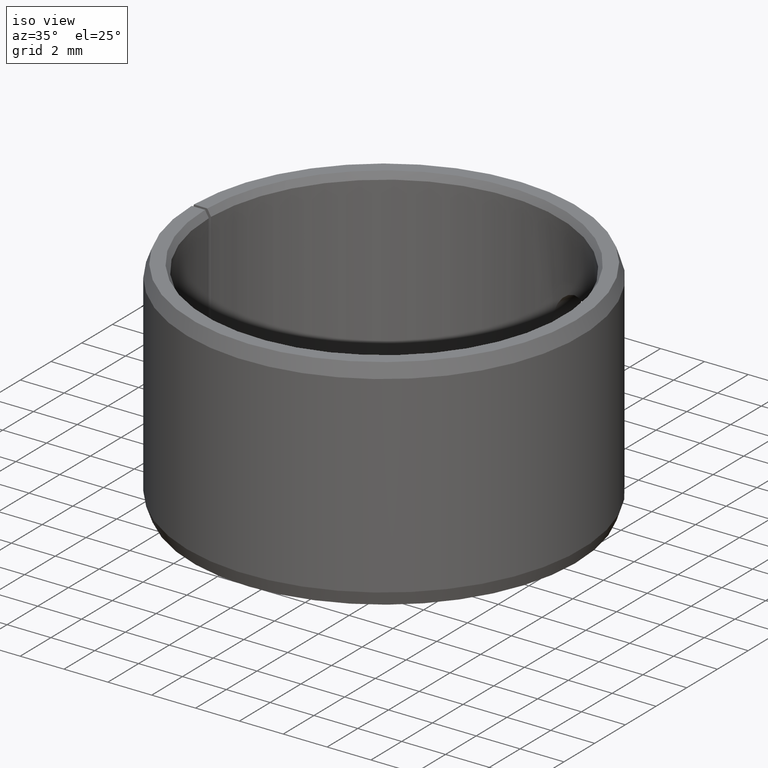
[diagram: clean part render]
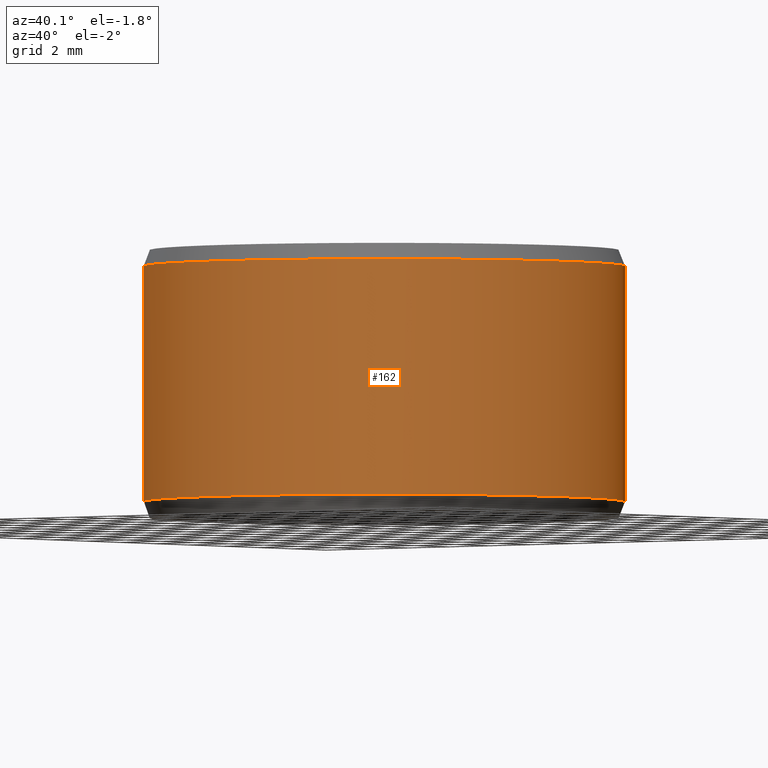
[diagram: tour spotlight — one face highlighted and labeled with its STEP entity id]
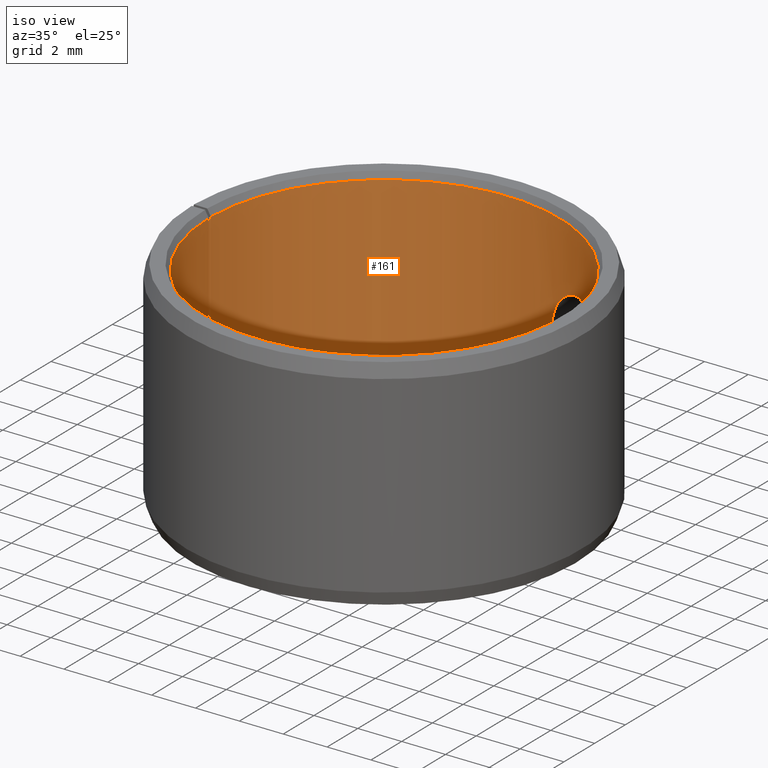
[diagram: tour spotlight — one face highlighted and labeled with its STEP entity id]
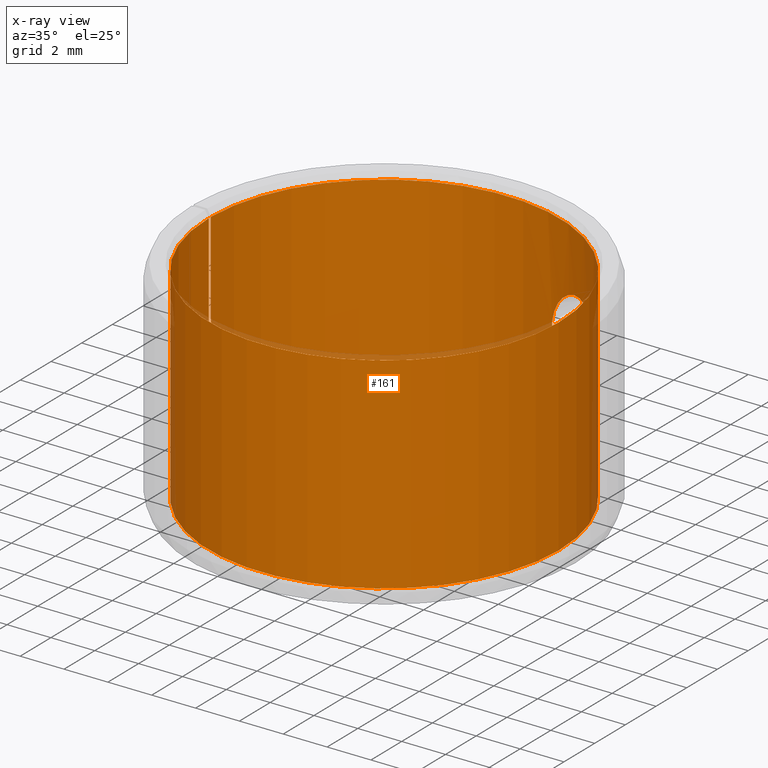
[diagram: x-ray of the same camera — body ghosted, this tour face saturated]
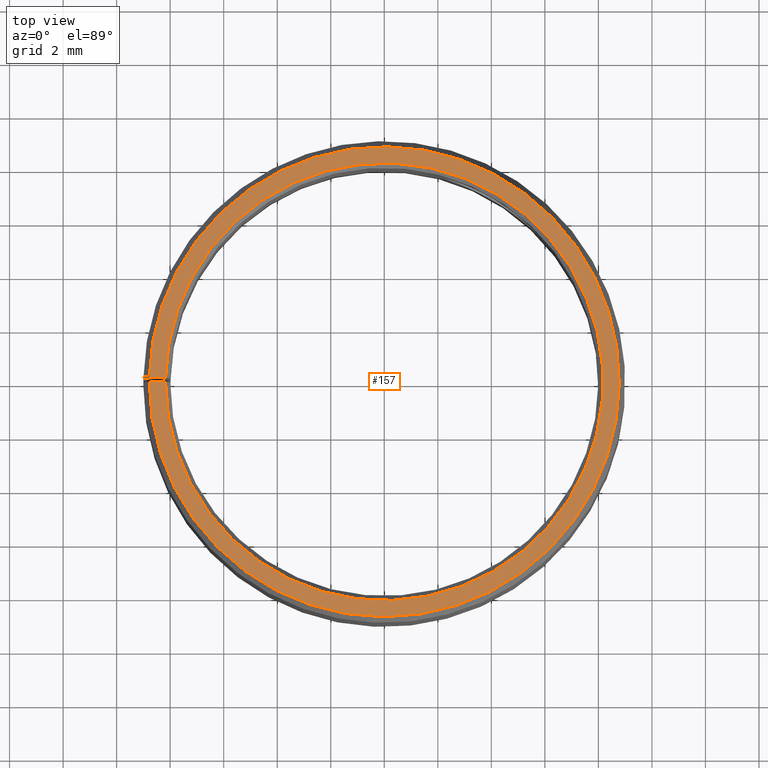
[diagram: tour spotlight — one face highlighted and labeled with its STEP entity id]
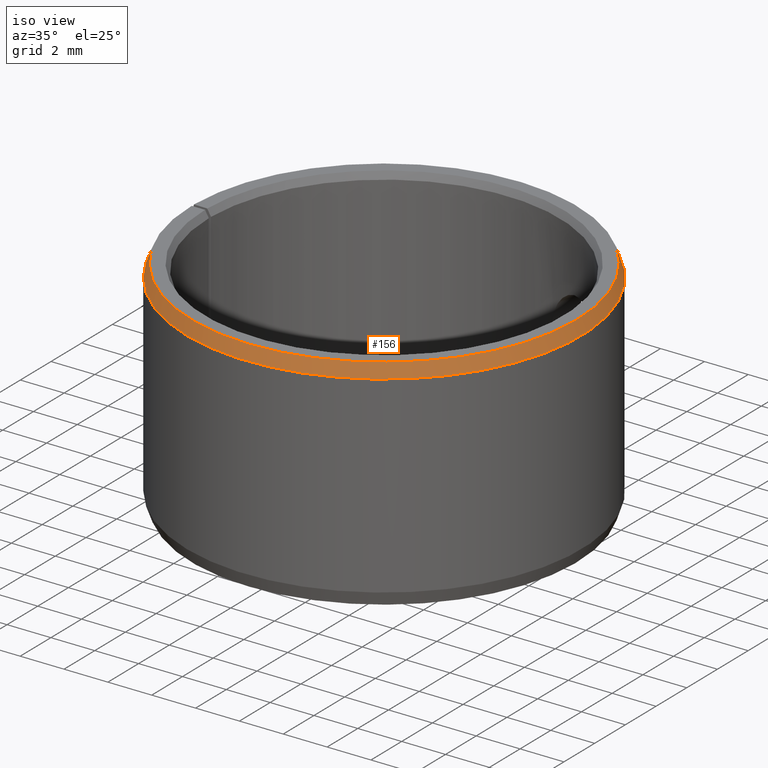
[diagram: tour spotlight — one face highlighted and labeled with its STEP entity id]
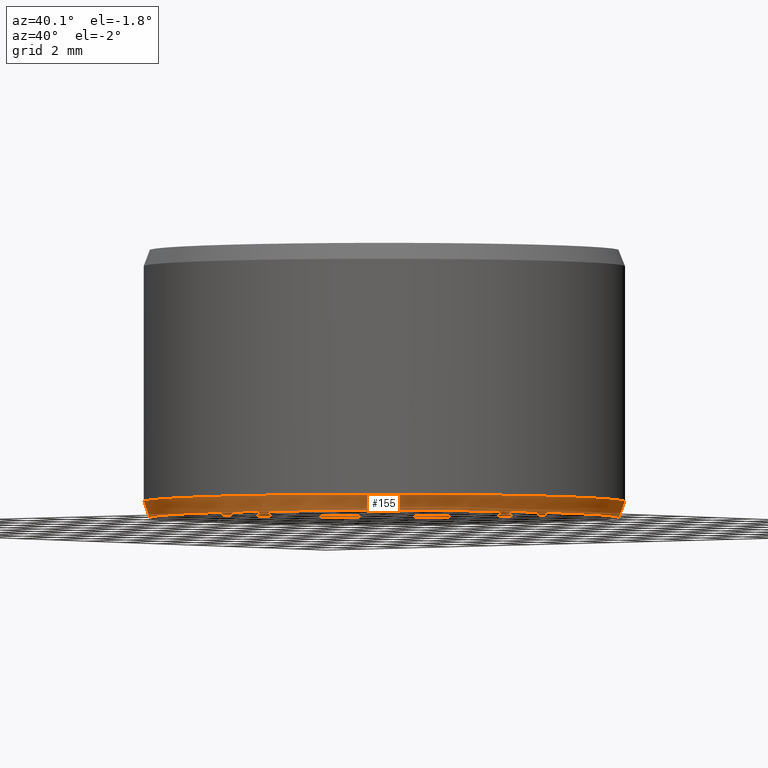
[diagram: tour spotlight — one face highlighted and labeled with its STEP entity id]
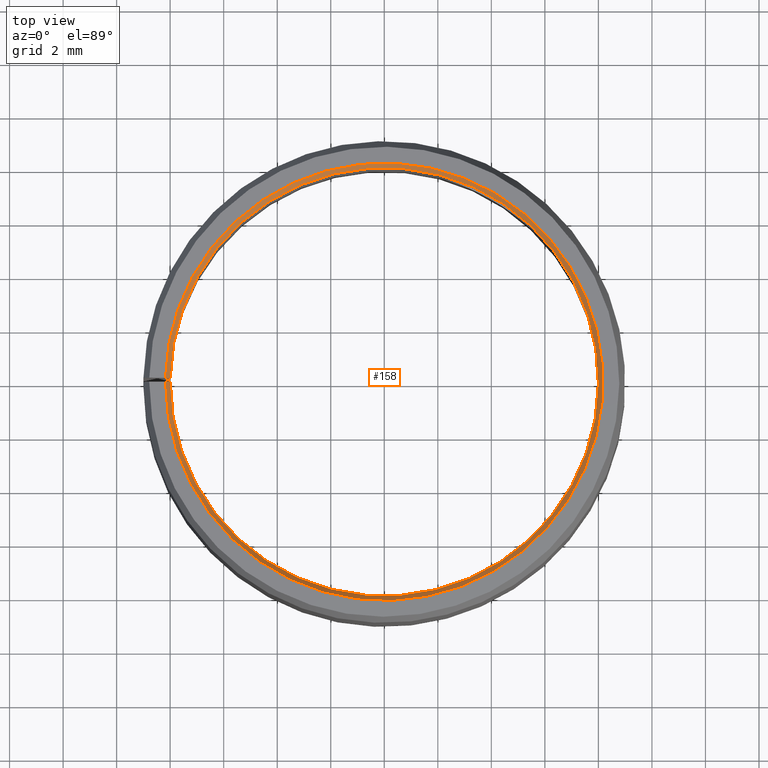
[diagram: tour spotlight — one face highlighted and labeled with its STEP entity id]
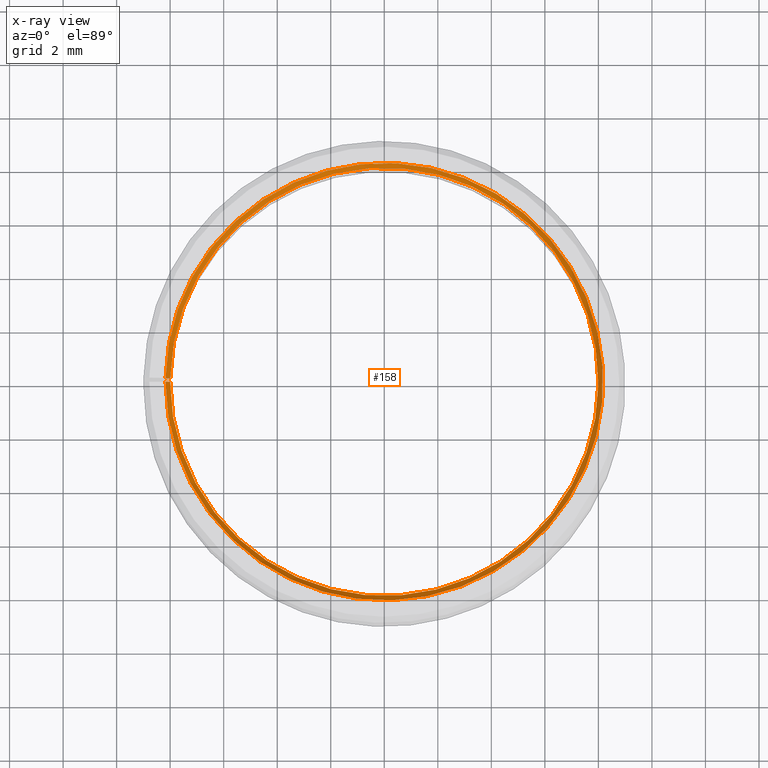
[diagram: x-ray of the same camera — body ghosted, this tour face saturated]
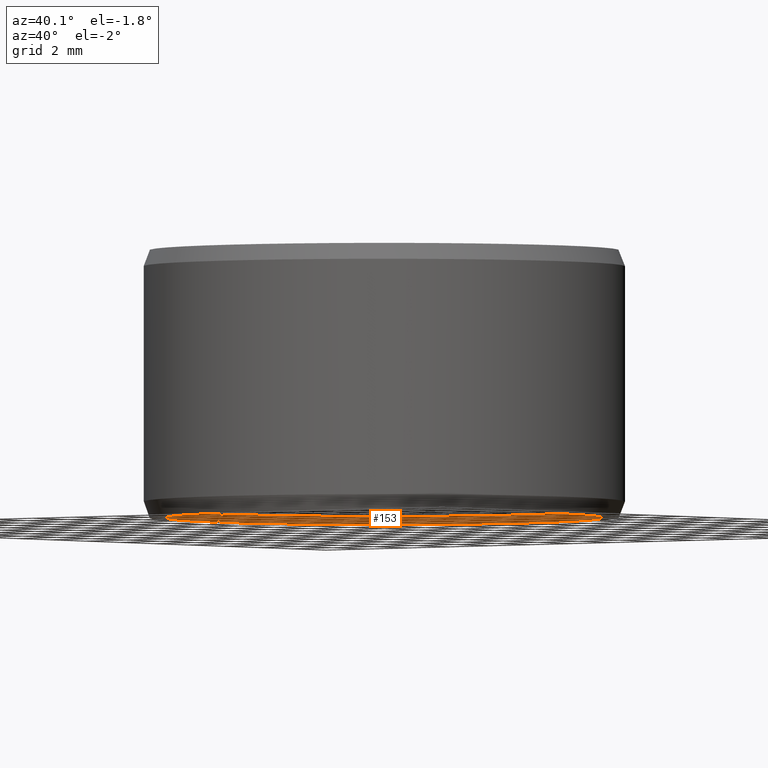
[diagram: tour spotlight — one face highlighted and labeled with its STEP entity id]
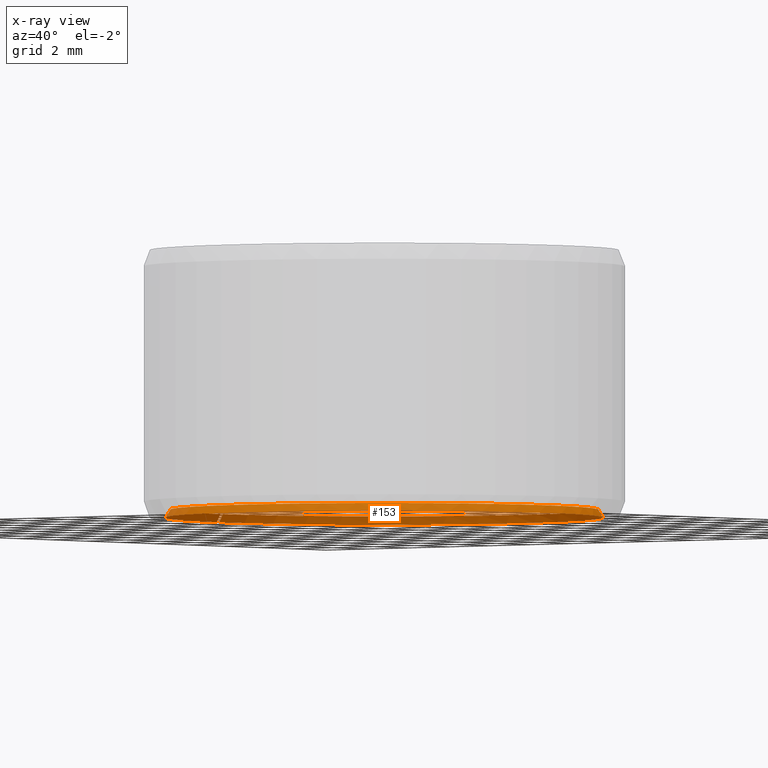
[diagram: x-ray of the same camera — body ghosted, this tour face saturated]
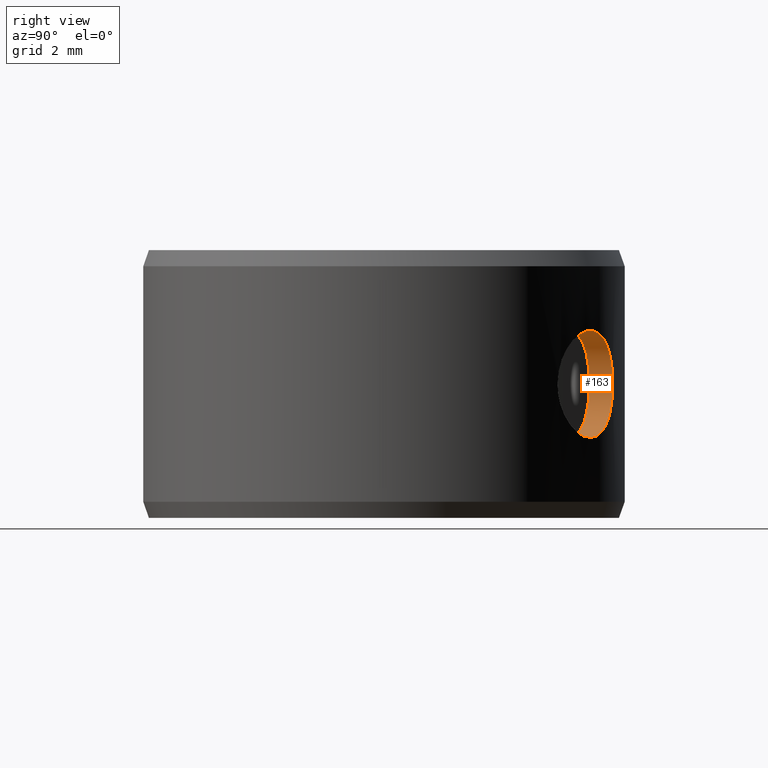
[diagram: tour spotlight — one face highlighted and labeled with its STEP entity id]
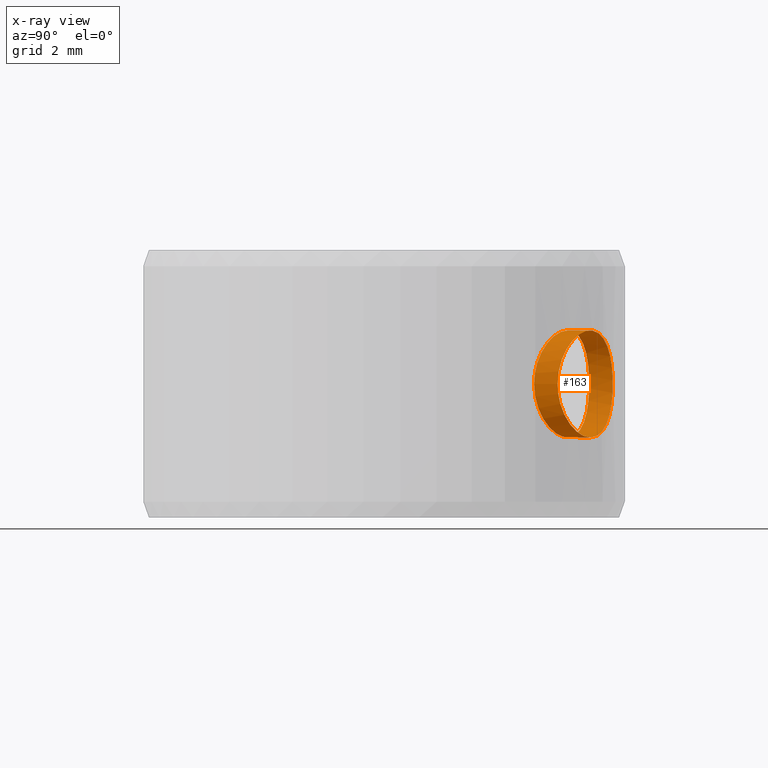
[diagram: x-ray of the same camera — body ghosted, this tour face saturated]
A machine part: a face-by-face anatomy tour. The part has 11 B-rep faces; the first image is the clean iso view, then the 8 largest visible faces are spotlighted one at a time (largest first), each with its STEP entity span.

Face 1 — auxiliary view, entity #162. In plain terms, the highlighted cylindrical surface (partial cylindrical patch) has radius 9 mm, axis along (-0, 0, -1).
Definition (entity closure, byte-faithful):
#162=ADVANCED_FACE('',(#185,#186),#187,.T.);
#185=FACE_OUTER_BOUND('',#211,.T.);
#186=FACE_BOUND('',#212,.T.);
#187=CYLINDRICAL_SURFACE('',#213,0.009);
#211=EDGE_LOOP('',(#289,#290,#291,#292));
#212=EDGE_LOOP('',(#293));
#213=AXIS2_PLACEMENT_3D('',#294,#295,#296);
#289=ORIENTED_EDGE('',*,*,#314,.T.);
#290=ORIENTED_EDGE('',*,*,#323,.F.);
#291=ORIENTED_EDGE('',*,*,#309,.F.);
#292=ORIENTED_EDGE('',*,*,#324,.T.);
#293=ORIENTED_EDGE('',*,*,#327,.T.);
#294=CARTESIAN_POINT('',(-6.93889390390723E-018,-6.93889390390723E-018,0.0));
#295=DIRECTION('',(6.12323399573677E-017,0.0,-1.0));
#296=DIRECTION('',(-1.0,0.0,-6.12323399573677E-017));
#309=EDGE_CURVE('',#341,#342,#343,.T.);
#314=EDGE_CURVE('',#351,#349,#352,.T.);
#323=EDGE_CURVE('',#342,#349,#365,.T.);
#324=EDGE_CURVE('',#341,#351,#366,.T.);
#327=EDGE_CURVE('',#370,#370,#371,.T.);
#341=VERTEX_POINT('',#389);
#342=VERTEX_POINT('',#390);
#343=CIRCLE('',#391,0.009);
#349=VERTEX_POINT('',#399);
#351=VERTEX_POINT('',#402);
#352=CIRCLE('',#403,0.009);
#365=LINE('',#422,#423);
#366=LINE('',#424,#425);
#370=VERTEX_POINT('',#483);
#371=B_SPLINE_CURVE_WITH_KNOTS('',3,(#484,#485,#486,#487,#488,#489,#490,#491,#492,#493,#494,#495,#496,#497,#498,#499,#500,#501,#502,#503,#504,#505,#506,#507,#508,#509,#510,#511,#512,#513,#514,#515,#516,#517,#518,#519,#520,#521,#522,#523,#524,#525,#526,#527,#528,#529,#530,#531,#532,#533,#534,#535,#536,#537,#538,#539),.UNSPECIFIED.,.T.,.F.,(2,2,2,2,2,2,2,2,2,2,2,2,2,2,2,2,2,2,2,2,2,2,2,2,2,2,2,2,2,2),(-0.000391979612327261,0.0,0.000391979612327263,0.000783959224654527,0.00117593883698179,0.00156791844930905,0.00235187767396358,0.00274385728629084,0.0031358368986181,0.00352781651094537,0.00391979612327263,0.00470375534792716,0.00509573496025442,0.00548771457258169,0.00587969418490895,0.00627167379723621,0.00705563302189074,0.007447612634218,0.00783959224654526,0.00823157185887253,0.00862355147119979,0.00940751069585431,0.00979949030818158,0.0101914699205088,0.0105834495328361,0.0109754291451634,0.0117593883698179,0.0121513679821452,0.0125433475944724,0.0129353272067997),.UNSPECIFIED.);
#389=CARTESIAN_POINT('',(0.000157071657935546,0.00899862925640751,0.0006));
#390=CARTESIAN_POINT('',(-6.93889390390723E-018,0.009,0.0006));
#391=AXIS2_PLACEMENT_3D('',#553,#554,#555);
#399=CARTESIAN_POINT('',(-6.93889390390723E-018,0.009,0.0094));
#402=CARTESIAN_POINT('',(0.000157071657935546,0.00899862925640751,0.0094));
#403=AXIS2_PLACEMENT_3D('',#562,#563,#564);
#422=CARTESIAN_POINT('',(-6.93889390390723E-018,0.009,0.0006));
#423=VECTOR('',#577,1.0);
#424=CARTESIAN_POINT('',(0.000157071657935546,0.00899862925640751,0.0006));
#425=VECTOR('',#578,1.0);
#483=CARTESIAN_POINT('',(0.00649153638789973,-0.00623377536686827,0.005));
#484=CARTESIAN_POINT('',(0.00649153638789973,-0.00623377536686827,0.00486742535613586));
#485=CARTESIAN_POINT('',(0.00649153638789973,-0.00623377536686827,0.00513257464386414));
#486=CARTESIAN_POINT('',(0.00650083241338172,-0.00622413544862422,0.00526284828907646));
#487=CARTESIAN_POINT('',(0.00653690008760389,-0.00618624453076171,0.00551900896382328));
#488=CARTESIAN_POINT('',(0.00656412375100507,-0.00615750895635173,0.00564625005786351));
#489=CARTESIAN_POINT('',(0.00663396264910226,-0.00608220163562314,0.00588823348289349));
#490=CARTESIAN_POINT('',(0.00667628926279565,-0.00603594335006861,0.0060029372563178));
#491=CARTESIAN_POINT('',(0.00677441003931837,-0.00592560706298861,0.00622001826356457));
#492=CARTESIAN_POINT('',(0.00683051653391996,-0.00586111851488462,0.00632246584466523));
#493=CARTESIAN_POINT('',(0.00701018186383621,-0.00564730162986275,0.00659821180236417));
#494=CARTESIAN_POINT('',(0.00714977991452247,-0.00547164517655704,0.00674709384398657));
#495=CARTESIAN_POINT('',(0.00736201865775566,-0.00517834382055882,0.00689693437285629));
#496=CARTESIAN_POINT('',(0.00743431346811199,-0.00507421932100882,0.00693556980366085));
#497=CARTESIAN_POINT('',(0.00757701422267754,-0.00485855677430992,0.00698711625691383));
#498=CARTESIAN_POINT('',(0.00764645237450646,-0.00474856808685544,0.00699992038524747));
#499=CARTESIAN_POINT('',(0.00778131158814689,-0.0045241930506189,0.00700007888162346));
#500=CARTESIAN_POINT('',(0.0078472956860369,-0.0044086814289909,0.00698699420428227));
#501=CARTESIAN_POINT('',(0.00796999714638662,-0.00418278220960781,0.00693578344770082));
#502=CARTESIAN_POINT('',(0.00802729836757029,-0.00407152433442573,0.00689789791403947));
#503=CARTESIAN_POINT('',(0.00818813184407548,-0.00374350301927322,0.00674704042524777));
#504=CARTESIAN_POINT('',(0.0082766783877908,-0.0035400471400707,0.00659999060963653));
#505=CARTESIAN_POINT('',(0.00838212938197548,-0.00327852737460508,0.00632158010506107));
#506=CARTESIAN_POINT('',(0.00841208911624106,-0.0032003411363729,0.00622106244951509));
#507=CARTESIAN_POINT('',(0.0084633488666744,-0.00306221368452679,0.00600486970299636));
#508=CARTESIAN_POINT('',(0.00848479381479918,-0.00300181606838985,0.00588776844088788));
#509=CARTESIAN_POINT('',(0.00851842492861313,-0.00290500645845757,0.00564621609125844));
#510=CARTESIAN_POINT('',(0.00853080799868714,-0.00286810252562134,0.00552155714320594));
#511=CARTESIAN_POINT('',(0.0085474901912799,-0.00281799727429142,0.0052643445149041));
#512=CARTESIAN_POINT('',(0.00855167121990006,-0.00280515941612128,0.00513157897297379));
#513=CARTESIAN_POINT('',(0.00855172345634039,-0.00280500016733714,0.00473934166213281));
#514=CARTESIAN_POINT('',(0.00853526937167027,-0.00285649654147554,0.00447536526852926));
#515=CARTESIAN_POINT('',(0.00848509149851213,-0.00300097004258383,0.00411407356537912));
#516=CARTESIAN_POINT('',(0.00846377977503213,-0.00306102971559201,0.00399717751562874));
#517=CARTESIAN_POINT('',(0.00841232596162622,-0.00319972544374196,0.00377970960645853));
#518=CARTESIAN_POINT('',(0.00838237346377926,-0.00327788269356002,0.00367928093876096));
#519=CARTESIAN_POINT('',(0.00831263861456454,-0.00345090409931389,0.00349473779407445));
#520=CARTESIAN_POINT('',(0.00827254210173716,-0.00354639556713496,0.00341049277168108));
#521=CARTESIAN_POINT('',(0.00818425207306022,-0.00374564978985196,0.00326569674961832));
#522=CARTESIAN_POINT('',(0.00813574281713006,-0.00385026607935063,0.00320406201048706));
#523=CARTESIAN_POINT('',(0.00797484308554206,-0.00417867419573572,0.00305242458679597));
#524=CARTESIAN_POINT('',(0.00785109086072634,-0.00440795543782149,0.00300016540364334));
#525=CARTESIAN_POINT('',(0.00764717876994217,-0.00474742894331719,0.00299991788418389));
#526=CARTESIAN_POINT('',(0.00757769047758648,-0.00485747845836631,0.00301277773818691));
#527=CARTESIAN_POINT('',(0.00743601970167962,-0.00507169606185447,0.00306367790309027));
#528=CARTESIAN_POINT('',(0.00736312247282269,-0.00517678605901221,0.00310238234989153));
#529=CARTESIAN_POINT('',(0.00722106423623225,-0.00537316645440817,0.00320248452026688));
#530=CARTESIAN_POINT('',(0.00715140437867387,-0.00546529702805657,0.00326382481227304));
#531=CARTESIAN_POINT('',(0.00701594159504656,-0.00563813973994041,0.00340929455519019));
#532=CARTESIAN_POINT('',(0.00695078098228433,-0.00571798092034065,0.00349304610191441));
#533=CARTESIAN_POINT('',(0.00677117897715322,-0.00593176057639042,0.00376842337523308));
#534=CARTESIAN_POINT('',(0.00666905663882202,-0.00604434914341994,0.00399069813312527));
#535=CARTESIAN_POINT('',(0.00656468250205727,-0.00615691171790107,0.00435155233730749));
#536=CARTESIAN_POINT('',(0.00653729335262864,-0.00618583015589816,0.00447867684463521));
#537=CARTESIAN_POINT('',(0.00650083505345713,-0.00622413389185071,0.00473665927723352));
#538=CARTESIAN_POINT('',(0.00649153638789973,-0.00623377536686827,0.00486742535613586));
#539=CARTESIAN_POINT('',(0.00649153638789973,-0.00623377536686827,0.00513257464386414));
#553=CARTESIAN_POINT('',(-6.93889390390723E-018,-6.93889390390723E-018,0.0006));
#554=DIRECTION('',(6.12323399573677E-017,0.0,-1.0));
#555=DIRECTION('',(-1.0,0.0,-6.12323399573677E-017));
#562=CARTESIAN_POINT('',(-6.93889390390723E-018,-6.93889390390723E-018,0.0094));
#563=DIRECTION('',(6.12323399573677E-017,0.0,-1.0));
#564=DIRECTION('',(-1.0,0.0,-6.12323399573677E-017));
#577=DIRECTION('',(0.0,0.0,1.0));
#578=DIRECTION('',(-9.3259819610035E-021,-1.0686516840419E-018,1.0));

Face 2 — iso view, entity #161. An x-ray twin of the same camera follows (body ghosted, this face saturated) — the face is partly hidden behind the body. In plain terms, the highlighted cylindrical surface (partial cylindrical patch) has radius 8 mm, axis along (-0, 0, -1).
Definition (entity closure, byte-faithful):
#161=ADVANCED_FACE('',(#182,#183),#184,.F.);
#182=FACE_OUTER_BOUND('',#208,.T.);
#183=FACE_BOUND('',#209,.T.);
#184=CYLINDRICAL_SURFACE('',#210,0.008);
#208=EDGE_LOOP('',(#281,#282,#283,#284));
#209=EDGE_LOOP('',(#285));
#210=AXIS2_PLACEMENT_3D('',#286,#287,#288);
#281=ORIENTED_EDGE('',*,*,#304,.T.);
#282=ORIENTED_EDGE('',*,*,#322,.F.);
#283=ORIENTED_EDGE('',*,*,#319,.F.);
#284=ORIENTED_EDGE('',*,*,#325,.T.);
#285=ORIENTED_EDGE('',*,*,#326,.T.);
#286=CARTESIAN_POINT('',(-6.93889390390723E-018,-6.93889390390723E-018,0.0));
#287=DIRECTION('',(6.12323399573677E-017,0.0,-1.0));
#288=DIRECTION('',(-1.0,0.0,-6.12323399573677E-017));
#304=EDGE_CURVE('',#333,#331,#334,.T.);
#319=EDGE_CURVE('',#359,#360,#361,.T.);
#322=EDGE_CURVE('',#360,#331,#364,.T.);
#325=EDGE_CURVE('',#359,#333,#367,.T.);
#326=EDGE_CURVE('',#368,#368,#369,.T.);
#331=VERTEX_POINT('',#375);
#333=VERTEX_POINT('',#378);
#334=CIRCLE('',#379,0.008);
#359=VERTEX_POINT('',#413);
#360=VERTEX_POINT('',#414);
#361=CIRCLE('',#415,0.008);
#364=LINE('',#420,#421);
#367=LINE('',#426,#427);
#368=VERTEX_POINT('',#428);
#369=B_SPLINE_CURVE_WITH_KNOTS('',3,(#429,#430,#431,#432,#433,#434,#435,#436,#437,#438,#439,#440,#441,#442,#443,#444,#445,#446,#447,#448,#449,#450,#451,#452,#453,#454,#455,#456,#457,#458,#459,#460,#461,#462,#463,#464,#465,#466,#467,#468,#469,#470,#471,#472,#473,#474,#475,#476,#477,#478,#479,#480,#481,#482),.UNSPECIFIED.,.T.,.F.,(2,2,2,2,2,2,2,2,2,2,2,2,2,2,2,2,2,2,2,2,2,2,2,2,2,2,2,2,2),(-0.000392312017681844,0.0,0.000392312017681839,0.000784624035363677,0.00117693605304552,0.00156924807072735,0.00235387210609103,0.00274618412377287,0.00313849614145471,0.00353080815913655,0.00392312017681839,0.00470774421218207,0.00510005622986391,0.00549236824754575,0.00588468026522759,0.00627699228290943,0.00706161631827311,0.00745392833595495,0.0078462403536368,0.00823855237131864,0.00863086438900048,0.00941548842436416,0.009807800442046,0.0102001124597278,0.0109847364950915,0.0117693605304552,0.0121616725481371,0.0125539845658189,0.0129462965835007),.UNSPECIFIED.);
#375=CARTESIAN_POINT('',(-6.93889390390723E-018,0.008,0.0003));
#378=CARTESIAN_POINT('',(0.000139619251498262,0.00799878156125112,0.0003));
#379=AXIS2_PLACEMENT_3D('',#544,#545,#546);
#413=CARTESIAN_POINT('',(0.000139619251498262,0.00799878156125112,0.0097));
#414=CARTESIAN_POINT('',(-6.93889390390723E-018,0.008,0.0097));
#415=AXIS2_PLACEMENT_3D('',#571,#572,#573);
#420=CARTESIAN_POINT('',(-6.93889390390723E-018,0.008,0.0097));
#421=VECTOR('',#576,1.0);
#426=CARTESIAN_POINT('',(0.000139619251498262,0.00799878156125112,0.0097));
#427=VECTOR('',#579,1.0);
#428=CARTESIAN_POINT('',(0.0056095132112655,-0.00570380237496337,0.005));
#429=CARTESIAN_POINT('',(0.0056095132112655,-0.00570380237496337,0.00513269663156611));
#430=CARTESIAN_POINT('',(0.0056095132112655,-0.00570380237496337,0.00486730336843389));
#431=CARTESIAN_POINT('',(0.0056191690025541,-0.00569435114265575,0.00473693407981992));
#432=CARTESIAN_POINT('',(0.00565658216009951,-0.00565718777142616,0.00448062456823436));
#433=CARTESIAN_POINT('',(0.00568481209143048,-0.0056289947242993,0.00435332563202647));
#434=CARTESIAN_POINT('',(0.00575705179202782,-0.00555508998891763,0.00411140502914309));
#435=CARTESIAN_POINT('',(0.00580077984987864,-0.0055096691786069,0.0039967490937557));
#436=CARTESIAN_POINT('',(0.00590193820474448,-0.00540116901715049,0.00377975804811228));
#437=CARTESIAN_POINT('',(0.00595963323741741,-0.00533774111508128,0.00367745062574756));
#438=CARTESIAN_POINT('',(0.00614396868257813,-0.00512703452027945,0.0034019641969985));
#439=CARTESIAN_POINT('',(0.00628663459542174,-0.00495344065608517,0.00325311935976912));
#440=CARTESIAN_POINT('',(0.00650218994239507,-0.00466220046442065,0.00310321070088901));
#441=CARTESIAN_POINT('',(0.00657545948058891,-0.00455851585525359,0.00306450826284977));
#442=CARTESIAN_POINT('',(0.00671940641911939,-0.00434353675685635,0.00301291359670834));
#443=CARTESIAN_POINT('',(0.00678919803632047,-0.00423366942599772,0.00300008197723144));
#444=CARTESIAN_POINT('',(0.00692419572055593,-0.0040090747571529,0.00299991879831713));
#445=CARTESIAN_POINT('',(0.00698992666361996,-0.00389325929904312,0.00301303199974382));
#446=CARTESIAN_POINT('',(0.00711146807749387,-0.00366654667434584,0.00306430012931235));
#447=CARTESIAN_POINT('',(0.00716791295616746,-0.0035547012940846,0.00310222696776254));
#448=CARTESIAN_POINT('',(0.00732546929982328,-0.00322443937557941,0.00325328837896395));
#449=CARTESIAN_POINT('',(0.00741079924540228,-0.00301918749085706,0.00340047621769413));
#450=CARTESIAN_POINT('',(0.00751115696186104,-0.00275524603882067,0.00367839370971186));
#451=CARTESIAN_POINT('',(0.00753947199067281,-0.00267616125415237,0.00377878353690175));
#452=CARTESIAN_POINT('',(0.0075876907530695,-0.00253622278046501,0.00399490175512531));
#453=CARTESIAN_POINT('',(0.00760771313591516,-0.00247494561142548,0.00411201589636021));
#454=CARTESIAN_POINT('',(0.00763896171915155,-0.00237674541994455,0.00435336692440267));
#455=CARTESIAN_POINT('',(0.00765040866385059,-0.00233922133771396,0.00447803402022512));
#456=CARTESIAN_POINT('',(0.00766581268077293,-0.00228823624961179,0.00473554958569948));
#457=CARTESIAN_POINT('',(0.00766964905284423,-0.00227518865361376,0.00486832526961422));
#458=CARTESIAN_POINT('',(0.00766969826638645,-0.00227502275063302,0.0052607878903068));
#459=CARTESIAN_POINT('',(0.00765463996966527,-0.00232745012181045,0.00552496524253668));
#460=CARTESIAN_POINT('',(0.00760796085372334,-0.0024741798503527,0.00588635608563252));
#461=CARTESIAN_POINT('',(0.00758803458321186,-0.00253520014302683,0.00600334590959333));
#462=CARTESIAN_POINT('',(0.00753969190313179,-0.00267554753407061,0.00622043963591382));
#463=CARTESIAN_POINT('',(0.007511382581584,-0.00275461349458018,0.00632079519879206));
#464=CARTESIAN_POINT('',(0.00744486618801936,-0.00292962988002456,0.00650536721463081));
#465=CARTESIAN_POINT('',(0.00740646410116664,-0.00302591878508258,0.0065894395999044));
#466=CARTESIAN_POINT('',(0.00732122205831439,-0.00322670149667376,0.00673409987144983));
#467=CARTESIAN_POINT('',(0.00727405825814018,-0.00333211841344404,0.00679578572270437));
#468=CARTESIAN_POINT('',(0.00711628822673311,-0.00366308456497804,0.00694769852545004));
#469=CARTESIAN_POINT('',(0.00699374091901445,-0.00389322638416011,0.00699986338978013));
#470=CARTESIAN_POINT('',(0.00678993545381981,-0.00423251490996962,0.0070000679046113));
#471=CARTESIAN_POINT('',(0.00672010838580348,-0.0043424286352299,0.00698720758219582));
#472=CARTESIAN_POINT('',(0.00657704018011493,-0.00455621395877813,0.00693618666625809));
#473=CARTESIAN_POINT('',(0.0065031978887915,-0.00466080557030076,0.00689740315020712));
#474=CARTESIAN_POINT('',(0.00628692171603839,-0.00495311828206436,0.00674725319174434));
#475=CARTESIAN_POINT('',(0.00614437980967188,-0.00512654037504055,0.006598496490052));
#476=CARTESIAN_POINT('',(0.00589867496293828,-0.00540744423401938,0.0062316013650502));
#477=CARTESIAN_POINT('',(0.00579334744797689,-0.00551794715671028,0.00600967062765652));
#478=CARTESIAN_POINT('',(0.0056853260981084,-0.00562847412959093,0.00564863042604348));
#479=CARTESIAN_POINT('',(0.0056569072862128,-0.0056568637269172,0.00552122102945332));
#480=CARTESIAN_POINT('',(0.00561917224679929,-0.00569434899971188,0.00526346660483036));
#481=CARTESIAN_POINT('',(0.0056095132112655,-0.00570380237496337,0.00513269663156611));
#482=CARTESIAN_POINT('',(0.0056095132112655,-0.00570380237496337,0.00486730336843389));
#544=CARTESIAN_POINT('',(-6.93889390390723E-018,-6.93889390390723E-018,0.0003));
#545=DIRECTION('',(6.12323399573677E-017,0.0,-1.0));
#546=DIRECTION('',(-1.0,0.0,-6.12323399573677E-017));
#571=CARTESIAN_POINT('',(-6.93889390390723E-018,-6.93889390390723E-018,0.0097));
#572=DIRECTION('',(6.12323399573677E-017,0.0,-1.0));
#573=DIRECTION('',(-1.0,0.0,-6.12323399573677E-017));
#576=DIRECTION('',(0.0,0.0,-1.0));
#579=DIRECTION('',(9.3259819610035E-021,1.0686516840419E-018,-1.0));

Face 3 — top view, entity #157. In plain terms, the highlighted planar face has unit normal (0, -0, 1).
Definition (entity closure, byte-faithful):
#157=ADVANCED_FACE('',(#174),#175,.T.);
#174=FACE_OUTER_BOUND('',#200,.T.);
#175=PLANE('',#201);
#200=EDGE_LOOP('',(#245,#246,#247,#248));
#201=AXIS2_PLACEMENT_3D('',#249,#250,#251);
#245=ORIENTED_EDGE('',*,*,#316,.T.);
#246=ORIENTED_EDGE('',*,*,#317,.T.);
#247=ORIENTED_EDGE('',*,*,#318,.F.);
#248=ORIENTED_EDGE('',*,*,#312,.F.);
#249=CARTESIAN_POINT('',(0.000153260364059854,0.00878028037650556,0.01));
#250=DIRECTION('',(-6.12323399573677E-017,0.0,1.0));
#251=DIRECTION('',(1.0,0.0,6.12323399573677E-017));
#312=EDGE_CURVE('',#346,#347,#348,.T.);
#316=EDGE_CURVE('',#346,#354,#355,.T.);
#317=EDGE_CURVE('',#354,#356,#357,.T.);
#318=EDGE_CURVE('',#347,#356,#358,.T.);
#346=VERTEX_POINT('',#396);
#347=VERTEX_POINT('',#397);
#348=CIRCLE('',#398,0.00878161785944028);
#354=VERTEX_POINT('',#406);
#355=LINE('',#407,#408);
#356=VERTEX_POINT('',#409);
#357=CIRCLE('',#410,0.00817320508075689);
#358=LINE('',#411,#412);
#396=CARTESIAN_POINT('',(0.000153260364059854,0.00878028037650556,0.01));
#397=CARTESIAN_POINT('',(-6.93889390390723E-018,0.00878161785944027,0.01));
#398=AXIS2_PLACEMENT_3D('',#558,#559,#560);
#406=CARTESIAN_POINT('',(0.000142642096964634,0.00817196026203527,0.01));
#407=CARTESIAN_POINT('',(0.000153260364059854,0.00878028037650556,0.01));
#408=VECTOR('',#566,1.0);
#409=CARTESIAN_POINT('',(-6.93889390390723E-018,0.00817320508075688,0.01));
#410=AXIS2_PLACEMENT_3D('',#567,#568,#569);
#411=CARTESIAN_POINT('',(-6.93889390390723E-018,0.00878161785944027,0.01));
#412=VECTOR('',#570,1.0);
#558=CARTESIAN_POINT('',(-6.93889390390723E-018,-6.93889390390723E-018,0.01));
#559=DIRECTION('',(6.12323399573677E-017,0.0,-1.0));
#560=DIRECTION('',(-1.0,0.0,-6.12323399573677E-017));
#566=DIRECTION('',(-0.0174524064372836,-0.999847695156391,-1.0686516840419E-018));
#567=CARTESIAN_POINT('',(-6.93889390390723E-018,-6.93889390390723E-018,0.01));
#568=DIRECTION('',(6.12323399573677E-017,0.0,-1.0));
#569=DIRECTION('',(-1.0,0.0,-6.12323399573677E-017));
#570=DIRECTION('',(0.0,-1.0,0.0));

Face 4 — iso view, entity #156. In plain terms, the highlighted conical surface has half-angle 20 deg.
Definition (entity closure, byte-faithful):
#156=ADVANCED_FACE('',(#172),#173,.T.);
#172=FACE_OUTER_BOUND('',#198,.T.);
#173=CONICAL_SURFACE('',#199,0.009,0.34906585039886);
#198=EDGE_LOOP('',(#238,#239,#240,#241));
#199=AXIS2_PLACEMENT_3D('',#242,#243,#244);
#238=ORIENTED_EDGE('',*,*,#312,.T.);
#239=ORIENTED_EDGE('',*,*,#313,.F.);
#240=ORIENTED_EDGE('',*,*,#314,.F.);
#241=ORIENTED_EDGE('',*,*,#315,.T.);
#242=CARTESIAN_POINT('',(-6.93889390390723E-018,-6.93889390390723E-018,0.0094));
#243=DIRECTION('',(6.12323399573677E-017,-0.0,-1.0));
#244=DIRECTION('',(-1.0,0.0,-6.12323399573677E-017));
#312=EDGE_CURVE('',#346,#347,#348,.T.);
#313=EDGE_CURVE('',#349,#347,#350,.T.);
#314=EDGE_CURVE('',#351,#349,#352,.T.);
#315=EDGE_CURVE('',#351,#346,#353,.T.);
#346=VERTEX_POINT('',#396);
#347=VERTEX_POINT('',#397);
#348=CIRCLE('',#398,0.00878161785944028);
#349=VERTEX_POINT('',#399);
#350=LINE('',#400,#401);
#351=VERTEX_POINT('',#402);
#352=CIRCLE('',#403,0.009);
#353=LINE('',#404,#405);
#396=CARTESIAN_POINT('',(0.000153260364059854,0.00878028037650556,0.01));
#397=CARTESIAN_POINT('',(-6.93889390390723E-018,0.00878161785944027,0.01));
#398=AXIS2_PLACEMENT_3D('',#558,#559,#560);
#399=CARTESIAN_POINT('',(-6.93889390390723E-018,0.009,0.0094));
#400=CARTESIAN_POINT('',(-6.93889390390723E-018,0.009,0.0094));
#401=VECTOR('',#561,1.0);
#402=CARTESIAN_POINT('',(0.000157071657935546,0.00899862925640751,0.0094));
#403=AXIS2_PLACEMENT_3D('',#562,#563,#564);
#404=CARTESIAN_POINT('',(0.000157071657935546,0.00899862925640751,0.0094));
#405=VECTOR('',#565,1.0);
#558=CARTESIAN_POINT('',(-6.93889390390723E-018,-6.93889390390723E-018,0.01));
#559=DIRECTION('',(6.12323399573677E-017,0.0,-1.0));
#560=DIRECTION('',(-1.0,0.0,-6.12323399573677E-017));
#561=DIRECTION('',(0.0,-0.342020143325666,0.93969262078591));
#562=CARTESIAN_POINT('',(-6.93889390390723E-018,-6.93889390390723E-018,0.0094));
#563=DIRECTION('',(6.12323399573677E-017,0.0,-1.0));
#564=DIRECTION('',(-1.0,0.0,-6.12323399573677E-017));
#565=DIRECTION('',(-0.00596907455105749,-0.341968052001226,0.939692620785909));

Face 5 — auxiliary view, entity #155. In plain terms, the highlighted conical surface has half-angle 20 deg.
Definition (entity closure, byte-faithful):
#155=ADVANCED_FACE('',(#170),#171,.T.);
#170=FACE_OUTER_BOUND('',#196,.T.);
#171=CONICAL_SURFACE('',#197,0.00878161785944028,0.349065850398861);
#196=EDGE_LOOP('',(#231,#232,#233,#234));
#197=AXIS2_PLACEMENT_3D('',#235,#236,#237);
#231=ORIENTED_EDGE('',*,*,#309,.T.);
#232=ORIENTED_EDGE('',*,*,#310,.F.);
#233=ORIENTED_EDGE('',*,*,#306,.F.);
#234=ORIENTED_EDGE('',*,*,#311,.T.);
#235=CARTESIAN_POINT('',(-6.93889390390723E-018,-6.93889390390723E-018,-6.50521303491303E-019));
#236=DIRECTION('',(-6.12323399573677E-017,0.0,1.0));
#237=DIRECTION('',(1.0,0.0,6.12323399573677E-017));
#306=EDGE_CURVE('',#336,#337,#338,.T.);
#309=EDGE_CURVE('',#341,#342,#343,.T.);
#310=EDGE_CURVE('',#337,#342,#344,.T.);
#311=EDGE_CURVE('',#336,#341,#345,.T.);
#336=VERTEX_POINT('',#382);
#337=VERTEX_POINT('',#383);
#338=CIRCLE('',#384,0.00878161785944028);
#341=VERTEX_POINT('',#389);
#342=VERTEX_POINT('',#390);
#343=CIRCLE('',#391,0.009);
#344=LINE('',#392,#393);
#345=LINE('',#394,#395);
#382=CARTESIAN_POINT('',(0.000153260364059854,0.00878028037650556,-6.41136812777199E-019));
#383=CARTESIAN_POINT('',(-6.93889390390723E-018,0.00878161785944027,-6.50521303491303E-019));
#384=AXIS2_PLACEMENT_3D('',#548,#549,#550);
#389=CARTESIAN_POINT('',(0.000157071657935546,0.00899862925640751,0.0006));
#390=CARTESIAN_POINT('',(-6.93889390390723E-018,0.009,0.0006));
#391=AXIS2_PLACEMENT_3D('',#553,#554,#555);
#392=CARTESIAN_POINT('',(-6.93889390390723E-018,0.00878161785944027,-6.50521303491303E-019));
#393=VECTOR('',#556,1.0);
#394=CARTESIAN_POINT('',(0.000153260364059854,0.00878028037650556,-6.41136812777199E-019));
#395=VECTOR('',#557,1.0);
#548=CARTESIAN_POINT('',(-6.93889390390723E-018,-6.93889390390723E-018,-6.50521303491303E-019));
#549=DIRECTION('',(6.12323399573677E-017,0.0,-1.0));
#550=DIRECTION('',(-1.0,0.0,-6.12323399573677E-017));
#553=CARTESIAN_POINT('',(-6.93889390390723E-018,-6.93889390390723E-018,0.0006));
#554=DIRECTION('',(6.12323399573677E-017,0.0,-1.0));
#555=DIRECTION('',(-1.0,0.0,-6.12323399573677E-017));
#556=DIRECTION('',(0.0,0.342020143325666,0.939692620785909));
#557=DIRECTION('',(0.0059690745510575,0.341968052001226,0.939692620785909));

Face 6 — top view, entity #158. An x-ray twin of the same camera follows (body ghosted, this face saturated) — the face is partly hidden behind the body. In plain terms, the highlighted conical surface has half-angle 30 deg.
Definition (entity closure, byte-faithful):
#158=ADVANCED_FACE('',(#176),#177,.F.);
#176=FACE_OUTER_BOUND('',#202,.T.);
#177=CONICAL_SURFACE('',#203,0.00817320508075689,0.5235987755983);
#202=EDGE_LOOP('',(#252,#253,#254,#255));
#203=AXIS2_PLACEMENT_3D('',#256,#257,#258);
#252=ORIENTED_EDGE('',*,*,#319,.T.);
#253=ORIENTED_EDGE('',*,*,#320,.F.);
#254=ORIENTED_EDGE('',*,*,#317,.F.);
#255=ORIENTED_EDGE('',*,*,#321,.T.);
#256=CARTESIAN_POINT('',(-6.93889390390723E-018,-6.93889390390723E-018,0.01));
#257=DIRECTION('',(-6.12323399573677E-017,0.0,1.0));
#258=DIRECTION('',(1.0,0.0,6.12323399573677E-017));
#317=EDGE_CURVE('',#354,#356,#357,.T.);
#319=EDGE_CURVE('',#359,#360,#361,.T.);
#320=EDGE_CURVE('',#356,#360,#362,.T.);
#321=EDGE_CURVE('',#354,#359,#363,.T.);
#354=VERTEX_POINT('',#406);
#356=VERTEX_POINT('',#409);
#357=CIRCLE('',#410,0.00817320508075689);
#359=VERTEX_POINT('',#413);
#360=VERTEX_POINT('',#414);
#361=CIRCLE('',#415,0.008);
#362=LINE('',#416,#417);
#363=LINE('',#418,#419);
#406=CARTESIAN_POINT('',(0.000142642096964634,0.00817196026203527,0.01));
#409=CARTESIAN_POINT('',(-6.93889390390723E-018,0.00817320508075688,0.01));
#410=AXIS2_PLACEMENT_3D('',#567,#568,#569);
#413=CARTESIAN_POINT('',(0.000139619251498262,0.00799878156125112,0.0097));
#414=CARTESIAN_POINT('',(-6.93889390390723E-018,0.008,0.0097));
#415=AXIS2_PLACEMENT_3D('',#571,#572,#573);
#416=CARTESIAN_POINT('',(-6.93889390390723E-018,0.00817320508075688,0.01));
#417=VECTOR('',#574,1.0);
#418=CARTESIAN_POINT('',(0.000142642096964634,0.00817196026203527,0.01));
#419=VECTOR('',#575,1.0);
#567=CARTESIAN_POINT('',(-6.93889390390723E-018,-6.93889390390723E-018,0.01));
#568=DIRECTION('',(6.12323399573677E-017,0.0,-1.0));
#569=DIRECTION('',(-1.0,0.0,-6.12323399573677E-017));
#571=CARTESIAN_POINT('',(-6.93889390390723E-018,-6.93889390390723E-018,0.0097));
#572=DIRECTION('',(6.12323399573677E-017,0.0,-1.0));
#573=DIRECTION('',(-1.0,0.0,-6.12323399573677E-017));
#574=DIRECTION('',(0.0,-0.499999999999999,-0.866025403784439));
#575=DIRECTION('',(-0.00872620321864174,-0.499923847578193,-0.86602540378444));

Face 7 — auxiliary view, entity #153. An x-ray twin of the same camera follows (body ghosted, this face saturated) — the face is partly hidden behind the body. In plain terms, the highlighted conical surface has half-angle 30 deg.
Definition (entity closure, byte-faithful):
#153=ADVANCED_FACE('',(#166),#167,.F.);
#166=FACE_OUTER_BOUND('',#192,.T.);
#167=CONICAL_SURFACE('',#193,0.008,0.523598775598312);
#192=EDGE_LOOP('',(#217,#218,#219,#220));
#193=AXIS2_PLACEMENT_3D('',#221,#222,#223);
#217=ORIENTED_EDGE('',*,*,#302,.T.);
#218=ORIENTED_EDGE('',*,*,#303,.F.);
#219=ORIENTED_EDGE('',*,*,#304,.F.);
#220=ORIENTED_EDGE('',*,*,#305,.T.);
#221=CARTESIAN_POINT('',(-6.93889390390723E-018,-6.93889390390723E-018,0.0003));
#222=DIRECTION('',(6.12323399573677E-017,-0.0,-1.0));
#223=DIRECTION('',(-1.0,0.0,-6.12323399573677E-017));
#302=EDGE_CURVE('',#328,#329,#330,.T.);
#303=EDGE_CURVE('',#331,#329,#332,.T.);
#304=EDGE_CURVE('',#333,#331,#334,.T.);
#305=EDGE_CURVE('',#333,#328,#335,.T.);
#328=VERTEX_POINT('',#372);
#329=VERTEX_POINT('',#373);
#330=CIRCLE('',#374,0.00817320508075689);
#331=VERTEX_POINT('',#375);
#332=LINE('',#376,#377);
#333=VERTEX_POINT('',#378);
#334=CIRCLE('',#379,0.008);
#335=LINE('',#380,#381);
#372=CARTESIAN_POINT('',(0.000142642096964634,0.00817196026203528,-4.54757992507046E-020));
#373=CARTESIAN_POINT('',(-6.93889390390723E-018,0.00817320508075688,-5.42101086242752E-020));
#374=AXIS2_PLACEMENT_3D('',#540,#541,#542);
#375=CARTESIAN_POINT('',(-6.93889390390723E-018,0.008,0.0003));
#376=CARTESIAN_POINT('',(-6.93889390390723E-018,0.008,0.0003));
#377=VECTOR('',#543,1.0);
#378=CARTESIAN_POINT('',(0.000139619251498262,0.00799878156125112,0.0003));
#379=AXIS2_PLACEMENT_3D('',#544,#545,#546);
#380=CARTESIAN_POINT('',(0.000139619251498262,0.00799878156125112,0.0003));
#381=VECTOR('',#547,1.0);
#540=CARTESIAN_POINT('',(-6.93889390390723E-018,-6.93889390390723E-018,-5.42101086242753E-020));
#541=DIRECTION('',(6.12323399573677E-017,0.0,-1.0));
#542=DIRECTION('',(-1.0,0.0,-6.12323399573677E-017));
#543=DIRECTION('',(0.0,0.500000000000001,-0.866025403784438));
#544=CARTESIAN_POINT('',(-6.93889390390723E-018,-6.93889390390723E-018,0.0003));
#545=DIRECTION('',(6.12323399573677E-017,0.0,-1.0));
#546=DIRECTION('',(-1.0,0.0,-6.12323399573677E-017));
#547=DIRECTION('',(0.00872620321864187,0.499923847578201,-0.866025403784436));

Face 8 — right view, entity #163. An x-ray twin of the same camera follows (body ghosted, this face saturated) — the face is partly hidden behind the body. In plain terms, the highlighted cylindrical surface (bore or boss wall) has radius 2 mm, axis along (0.515, 0.8572, 0).
Definition (entity closure, byte-faithful):
#163=ADVANCED_FACE('',(#188,#189),#190,.F.);
#188=FACE_OUTER_BOUND('',#214,.T.);
#189=FACE_OUTER_BOUND('',#215,.T.);
#190=CYLINDRICAL_SURFACE('',#216,0.002);
#214=EDGE_LOOP('',(#297));
#215=EDGE_LOOP('',(#298));
#216=AXIS2_PLACEMENT_3D('',#299,#300,#301);
#297=ORIENTED_EDGE('',*,*,#326,.F.);
#298=ORIENTED_EDGE('',*,*,#327,.F.);
#299=CARTESIAN_POINT('',(0.00342866920281564,-0.00206015229962823,0.005));
#300=DIRECTION('',(0.85716730070391,-0.515038074907062,0.0));
#301=DIRECTION('',(-0.515038074907062,-0.85716730070391,0.0));
#326=EDGE_CURVE('',#368,#368,#369,.T.);
#327=EDGE_CURVE('',#370,#370,#371,.T.);
#368=VERTEX_POINT('',#428);
#369=B_SPLINE_CURVE_WITH_KNOTS('',3,(#429,#430,#431,#432,#433,#434,#435,#436,#437,#438,#439,#440,#441,#442,#443,#444,#445,#446,#447,#448,#449,#450,#451,#452,#453,#454,#455,#456,#457,#458,#459,#460,#461,#462,#463,#464,#465,#466,#467,#468,#469,#470,#471,#472,#473,#474,#475,#476,#477,#478,#479,#480,#481,#482),.UNSPECIFIED.,.T.,.F.,(2,2,2,2,2,2,2,2,2,2,2,2,2,2,2,2,2,2,2,2,2,2,2,2,2,2,2,2,2),(-0.000392312017681844,0.0,0.000392312017681839,0.000784624035363677,0.00117693605304552,0.00156924807072735,0.00235387210609103,0.00274618412377287,0.00313849614145471,0.00353080815913655,0.00392312017681839,0.00470774421218207,0.00510005622986391,0.00549236824754575,0.00588468026522759,0.00627699228290943,0.00706161631827311,0.00745392833595495,0.0078462403536368,0.00823855237131864,0.00863086438900048,0.00941548842436416,0.009807800442046,0.0102001124597278,0.0109847364950915,0.0117693605304552,0.0121616725481371,0.0125539845658189,0.0129462965835007),.UNSPECIFIED.);
#370=VERTEX_POINT('',#483);
#371=B_SPLINE_CURVE_WITH_KNOTS('',3,(#484,#485,#486,#487,#488,#489,#490,#491,#492,#493,#494,#495,#496,#497,#498,#499,#500,#501,#502,#503,#504,#505,#506,#507,#508,#509,#510,#511,#512,#513,#514,#515,#516,#517,#518,#519,#520,#521,#522,#523,#524,#525,#526,#527,#528,#529,#530,#531,#532,#533,#534,#535,#536,#537,#538,#539),.UNSPECIFIED.,.T.,.F.,(2,2,2,2,2,2,2,2,2,2,2,2,2,2,2,2,2,2,2,2,2,2,2,2,2,2,2,2,2,2),(-0.000391979612327261,0.0,0.000391979612327263,0.000783959224654527,0.00117593883698179,0.00156791844930905,0.00235187767396358,0.00274385728629084,0.0031358368986181,0.00352781651094537,0.00391979612327263,0.00470375534792716,0.00509573496025442,0.00548771457258169,0.00587969418490895,0.00627167379723621,0.00705563302189074,0.007447612634218,0.00783959224654526,0.00823157185887253,0.00862355147119979,0.00940751069585431,0.00979949030818158,0.0101914699205088,0.0105834495328361,0.0109754291451634,0.0117593883698179,0.0121513679821452,0.0125433475944724,0.0129353272067997),.UNSPECIFIED.);
#428=CARTESIAN_POINT('',(0.0056095132112655,-0.00570380237496337,0.005));
#429=CARTESIAN_POINT('',(0.0056095132112655,-0.00570380237496337,0.00513269663156611));
#430=CARTESIAN_POINT('',(0.0056095132112655,-0.00570380237496337,0.00486730336843389));
#431=CARTESIAN_POINT('',(0.0056191690025541,-0.00569435114265575,0.00473693407981992));
#432=CARTESIAN_POINT('',(0.00565658216009951,-0.00565718777142616,0.00448062456823436));
#433=CARTESIAN_POINT('',(0.00568481209143048,-0.0056289947242993,0.00435332563202647));
#434=CARTESIAN_POINT('',(0.00575705179202782,-0.00555508998891763,0.00411140502914309));
#435=CARTESIAN_POINT('',(0.00580077984987864,-0.0055096691786069,0.0039967490937557));
#436=CARTESIAN_POINT('',(0.00590193820474448,-0.00540116901715049,0.00377975804811228));
#437=CARTESIAN_POINT('',(0.00595963323741741,-0.00533774111508128,0.00367745062574756));
#438=CARTESIAN_POINT('',(0.00614396868257813,-0.00512703452027945,0.0034019641969985));
#439=CARTESIAN_POINT('',(0.00628663459542174,-0.00495344065608517,0.00325311935976912));
#440=CARTESIAN_POINT('',(0.00650218994239507,-0.00466220046442065,0.00310321070088901));
#441=CARTESIAN_POINT('',(0.00657545948058891,-0.00455851585525359,0.00306450826284977));
#442=CARTESIAN_POINT('',(0.00671940641911939,-0.00434353675685635,0.00301291359670834));
#443=CARTESIAN_POINT('',(0.00678919803632047,-0.00423366942599772,0.00300008197723144));
#444=CARTESIAN_POINT('',(0.00692419572055593,-0.0040090747571529,0.00299991879831713));
#445=CARTESIAN_POINT('',(0.00698992666361996,-0.00389325929904312,0.00301303199974382));
#446=CARTESIAN_POINT('',(0.00711146807749387,-0.00366654667434584,0.00306430012931235));
#447=CARTESIAN_POINT('',(0.00716791295616746,-0.0035547012940846,0.00310222696776254));
#448=CARTESIAN_POINT('',(0.00732546929982328,-0.00322443937557941,0.00325328837896395));
#449=CARTESIAN_POINT('',(0.00741079924540228,-0.00301918749085706,0.00340047621769413));
#450=CARTESIAN_POINT('',(0.00751115696186104,-0.00275524603882067,0.00367839370971186));
#451=CARTESIAN_POINT('',(0.00753947199067281,-0.00267616125415237,0.00377878353690175));
#452=CARTESIAN_POINT('',(0.0075876907530695,-0.00253622278046501,0.00399490175512531));
#453=CARTESIAN_POINT('',(0.00760771313591516,-0.00247494561142548,0.00411201589636021));
#454=CARTESIAN_POINT('',(0.00763896171915155,-0.00237674541994455,0.00435336692440267));
#455=CARTESIAN_POINT('',(0.00765040866385059,-0.00233922133771396,0.00447803402022512));
#456=CARTESIAN_POINT('',(0.00766581268077293,-0.00228823624961179,0.00473554958569948));
#457=CARTESIAN_POINT('',(0.00766964905284423,-0.00227518865361376,0.00486832526961422));
#458=CARTESIAN_POINT('',(0.00766969826638645,-0.00227502275063302,0.0052607878903068));
#459=CARTESIAN_POINT('',(0.00765463996966527,-0.00232745012181045,0.00552496524253668));
#460=CARTESIAN_POINT('',(0.00760796085372334,-0.0024741798503527,0.00588635608563252));
#461=CARTESIAN_POINT('',(0.00758803458321186,-0.00253520014302683,0.00600334590959333));
#462=CARTESIAN_POINT('',(0.00753969190313179,-0.00267554753407061,0.00622043963591382));
#463=CARTESIAN_POINT('',(0.007511382581584,-0.00275461349458018,0.00632079519879206));
#464=CARTESIAN_POINT('',(0.00744486618801936,-0.00292962988002456,0.00650536721463081));
#465=CARTESIAN_POINT('',(0.00740646410116664,-0.00302591878508258,0.0065894395999044));
#466=CARTESIAN_POINT('',(0.00732122205831439,-0.00322670149667376,0.00673409987144983));
#467=CARTESIAN_POINT('',(0.00727405825814018,-0.00333211841344404,0.00679578572270437));
#468=CARTESIAN_POINT('',(0.00711628822673311,-0.00366308456497804,0.00694769852545004));
#469=CARTESIAN_POINT('',(0.00699374091901445,-0.00389322638416011,0.00699986338978013));
#470=CARTESIAN_POINT('',(0.00678993545381981,-0.00423251490996962,0.0070000679046113));
#471=CARTESIAN_POINT('',(0.00672010838580348,-0.0043424286352299,0.00698720758219582));
#472=CARTESIAN_POINT('',(0.00657704018011493,-0.00455621395877813,0.00693618666625809));
#473=CARTESIAN_POINT('',(0.0065031978887915,-0.00466080557030076,0.00689740315020712));
#474=CARTESIAN_POINT('',(0.00628692171603839,-0.00495311828206436,0.00674725319174434));
#475=CARTESIAN_POINT('',(0.00614437980967188,-0.00512654037504055,0.006598496490052));
#476=CARTESIAN_POINT('',(0.00589867496293828,-0.00540744423401938,0.0062316013650502));
#477=CARTESIAN_POINT('',(0.00579334744797689,-0.00551794715671028,0.00600967062765652));
#478=CARTESIAN_POINT('',(0.0056853260981084,-0.00562847412959093,0.00564863042604348));
#479=CARTESIAN_POINT('',(0.0056569072862128,-0.0056568637269172,0.00552122102945332));
#480=CARTESIAN_POINT('',(0.00561917224679929,-0.00569434899971188,0.00526346660483036));
#481=CARTESIAN_POINT('',(0.0056095132112655,-0.00570380237496337,0.00513269663156611));
#482=CARTESIAN_POINT('',(0.0056095132112655,-0.00570380237496337,0.00486730336843389));
#483=CARTESIAN_POINT('',(0.00649153638789973,-0.00623377536686827,0.005));
#484=CARTESIAN_POINT('',(0.00649153638789973,-0.00623377536686827,0.00486742535613586));
#485=CARTESIAN_POINT('',(0.00649153638789973,-0.00623377536686827,0.00513257464386414));
#486=CARTESIAN_POINT('',(0.00650083241338172,-0.00622413544862422,0.00526284828907646));
#487=CARTESIAN_POINT('',(0.00653690008760389,-0.00618624453076171,0.00551900896382328));
#488=CARTESIAN_POINT('',(0.00656412375100507,-0.00615750895635173,0.00564625005786351));
#489=CARTESIAN_POINT('',(0.00663396264910226,-0.00608220163562314,0.00588823348289349));
#490=CARTESIAN_POINT('',(0.00667628926279565,-0.00603594335006861,0.0060029372563178));
#491=CARTESIAN_POINT('',(0.00677441003931837,-0.00592560706298861,0.00622001826356457));
#492=CARTESIAN_POINT('',(0.00683051653391996,-0.00586111851488462,0.00632246584466523));
#493=CARTESIAN_POINT('',(0.00701018186383621,-0.00564730162986275,0.00659821180236417));
#494=CARTESIAN_POINT('',(0.00714977991452247,-0.00547164517655704,0.00674709384398657));
#495=CARTESIAN_POINT('',(0.00736201865775566,-0.00517834382055882,0.00689693437285629));
#496=CARTESIAN_POINT('',(0.00743431346811199,-0.00507421932100882,0.00693556980366085));
#497=CARTESIAN_POINT('',(0.00757701422267754,-0.00485855677430992,0.00698711625691383));
#498=CARTESIAN_POINT('',(0.00764645237450646,-0.00474856808685544,0.00699992038524747));
#499=CARTESIAN_POINT('',(0.00778131158814689,-0.0045241930506189,0.00700007888162346));
#500=CARTESIAN_POINT('',(0.0078472956860369,-0.0044086814289909,0.00698699420428227));
#501=CARTESIAN_POINT('',(0.00796999714638662,-0.00418278220960781,0.00693578344770082));
#502=CARTESIAN_POINT('',(0.00802729836757029,-0.00407152433442573,0.00689789791403947));
#503=CARTESIAN_POINT('',(0.00818813184407548,-0.00374350301927322,0.00674704042524777));
#504=CARTESIAN_POINT('',(0.0082766783877908,-0.0035400471400707,0.00659999060963653));
#505=CARTESIAN_POINT('',(0.00838212938197548,-0.00327852737460508,0.00632158010506107));
#506=CARTESIAN_POINT('',(0.00841208911624106,-0.0032003411363729,0.00622106244951509));
#507=CARTESIAN_POINT('',(0.0084633488666744,-0.00306221368452679,0.00600486970299636));
#508=CARTESIAN_POINT('',(0.00848479381479918,-0.00300181606838985,0.00588776844088788));
#509=CARTESIAN_POINT('',(0.00851842492861313,-0.00290500645845757,0.00564621609125844));
#510=CARTESIAN_POINT('',(0.00853080799868714,-0.00286810252562134,0.00552155714320594));
#511=CARTESIAN_POINT('',(0.0085474901912799,-0.00281799727429142,0.0052643445149041));
#512=CARTESIAN_POINT('',(0.00855167121990006,-0.00280515941612128,0.00513157897297379));
#513=CARTESIAN_POINT('',(0.00855172345634039,-0.00280500016733714,0.00473934166213281));
#514=CARTESIAN_POINT('',(0.00853526937167027,-0.00285649654147554,0.00447536526852926));
#515=CARTESIAN_POINT('',(0.00848509149851213,-0.00300097004258383,0.00411407356537912));
#516=CARTESIAN_POINT('',(0.00846377977503213,-0.00306102971559201,0.00399717751562874));
#517=CARTESIAN_POINT('',(0.00841232596162622,-0.00319972544374196,0.00377970960645853));
#518=CARTESIAN_POINT('',(0.00838237346377926,-0.00327788269356002,0.00367928093876096));
#519=CARTESIAN_POINT('',(0.00831263861456454,-0.00345090409931389,0.00349473779407445));
#520=CARTESIAN_POINT('',(0.00827254210173716,-0.00354639556713496,0.00341049277168108));
#521=CARTESIAN_POINT('',(0.00818425207306022,-0.00374564978985196,0.00326569674961832));
#522=CARTESIAN_POINT('',(0.00813574281713006,-0.00385026607935063,0.00320406201048706));
#523=CARTESIAN_POINT('',(0.00797484308554206,-0.00417867419573572,0.00305242458679597));
#524=CARTESIAN_POINT('',(0.00785109086072634,-0.00440795543782149,0.00300016540364334));
#525=CARTESIAN_POINT('',(0.00764717876994217,-0.00474742894331719,0.00299991788418389));
#526=CARTESIAN_POINT('',(0.00757769047758648,-0.00485747845836631,0.00301277773818691));
#527=CARTESIAN_POINT('',(0.00743601970167962,-0.00507169606185447,0.00306367790309027));
#528=CARTESIAN_POINT('',(0.00736312247282269,-0.00517678605901221,0.00310238234989153));
#529=CARTESIAN_POINT('',(0.00722106423623225,-0.00537316645440817,0.00320248452026688));
#530=CARTESIAN_POINT('',(0.00715140437867387,-0.00546529702805657,0.00326382481227304));
#531=CARTESIAN_POINT('',(0.00701594159504656,-0.00563813973994041,0.00340929455519019));
#532=CARTESIAN_POINT('',(0.00695078098228433,-0.00571798092034065,0.00349304610191441));
#533=CARTESIAN_POINT('',(0.00677117897715322,-0.00593176057639042,0.00376842337523308));
#534=CARTESIAN_POINT('',(0.00666905663882202,-0.00604434914341994,0.00399069813312527));
#535=CARTESIAN_POINT('',(0.00656468250205727,-0.00615691171790107,0.00435155233730749));
#536=CARTESIAN_POINT('',(0.00653729335262864,-0.00618583015589816,0.00447867684463521));
#537=CARTESIAN_POINT('',(0.00650083505345713,-0.00622413389185071,0.00473665927723352));
#538=CARTESIAN_POINT('',(0.00649153638789973,-0.00623377536686827,0.00486742535613586));
#539=CARTESIAN_POINT('',(0.00649153638789973,-0.00623377536686827,0.00513257464386414));